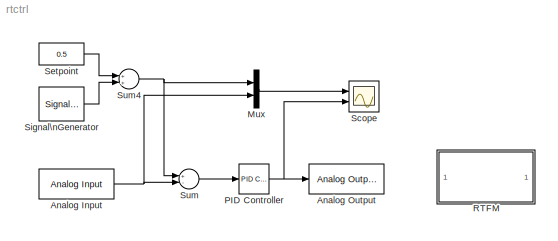
MODEL rtctrl
KIND model
BLOCK [Reference] Analog Input  REF=rtwinlib/Analog Input
  Channels = 1
  DrvAddress = 0
  DrvOptions = 0
  Ports = [0, 1]
  RangeMode = 1
  SampleTime = 1e-3
  SourceBlock = rtwinlib/Analog Input
  SourceType = RTWin Analog Input
  VoltRange = 1
BLOCK [Reference] Analog Output  REF=rtwinlib/Analog Output
  Channels = 1
  DrvAddress = 0
  DrvOptions = 0
  FinalValue = []
  InitialValue = []
  Ports = [1]
  RangeMode = 1
  SampleTime = 1e-3
  SourceBlock = rtwinlib/Analog Output
  SourceType = RTWin Analog Output
  VoltRange = 1
BLOCK [Mux] Mux
  DisplayOption = bar
  Inputs = 2
  Ports = [2, 1]
BLOCK [Reference] PID Controller  REF=simulink_extras/Additional\nLinear/PID Controller
  D = 0.08
  I = 40
  P = 4
  Ports = [1, 1]
  ShowPortLabels = on
  SourceBlock = simulink_extras/Additional\nLinear/PID Controller
  SourceType = PID Controller
BLOCK [SubSystem] RTFM 
  MaskDisplay = disp('Info')
  MaskIconFrame = on
  MaskIconOpaque = on
  MaskIconRotate = none
  MaskIconUnits = autoscale
  MaskType = Frame-Based Simulation Info
  Ports = []
  TreatAsAtomicUnit = off
BLOCK [Scope] Scope
  DataFormat = Structure
  ExtModeUploadOption = log
  NumInputPorts = 2
  Ports = [2]
  TimeRange = 10
  YMax = 5~5
  YMin = -5~-5
BLOCK [Constant] Setpoint
  Value = 0.5
BLOCK [SignalGenerator] Signal\nGenerator
  Amplitude = 0.20000
  Frequency = 3.000000
  Ports = [0, 1]
  Units = rad/sec
  WaveForm = square
BLOCK [Sum] Sum
  Inputs = +-
  Ports = [2, 1]
BLOCK [Sum] Sum4
  Ports = [2, 1]
ANNOTATION RTFM : How to run this demo:\n\n1) Open the Analog Input and Analog Output blocks and select your \n data acquisition board.\n If there's no board installed, install it using the Install new board button.\n2) Build the model using Tools->Real-Time Workshop->Build Model.\n3) Connect to the real-time code using Simulation->Connect to target.\n4) Start the real-time execution using Simulation->Start real-ti...<+103ch>
NET Analog Input:1 -> Mux:2, Sum:2
LINE Mux:1 -> Scope:1
NET PID Controller:1 -> Analog Output:1, Scope:2
LINE Setpoint:1 -> Sum4:1
LINE Signal\nGenerator:1 -> Sum4:2
NET Sum4:1 -> Mux:1, Sum:1
LINE Sum:1 -> PID Controller:1
note: NET lines group one-source signal fan-out (src -> all destinations, sorted); 1:1 wires keep LINE
